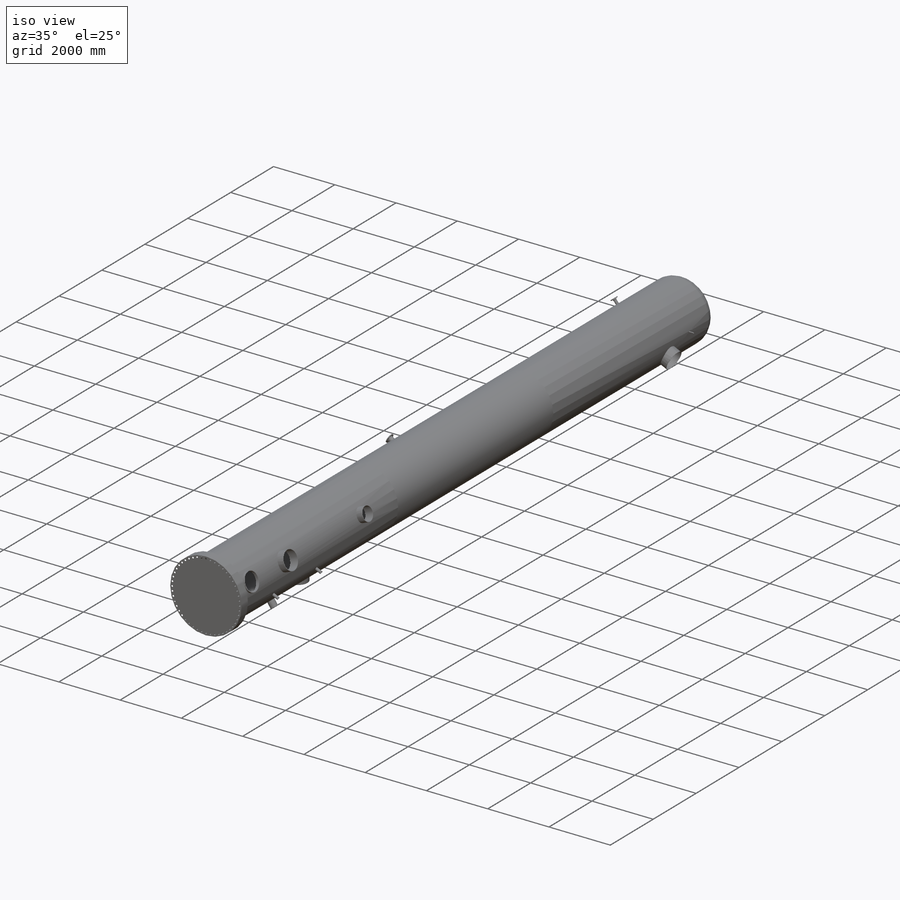
[diagram: iso view]
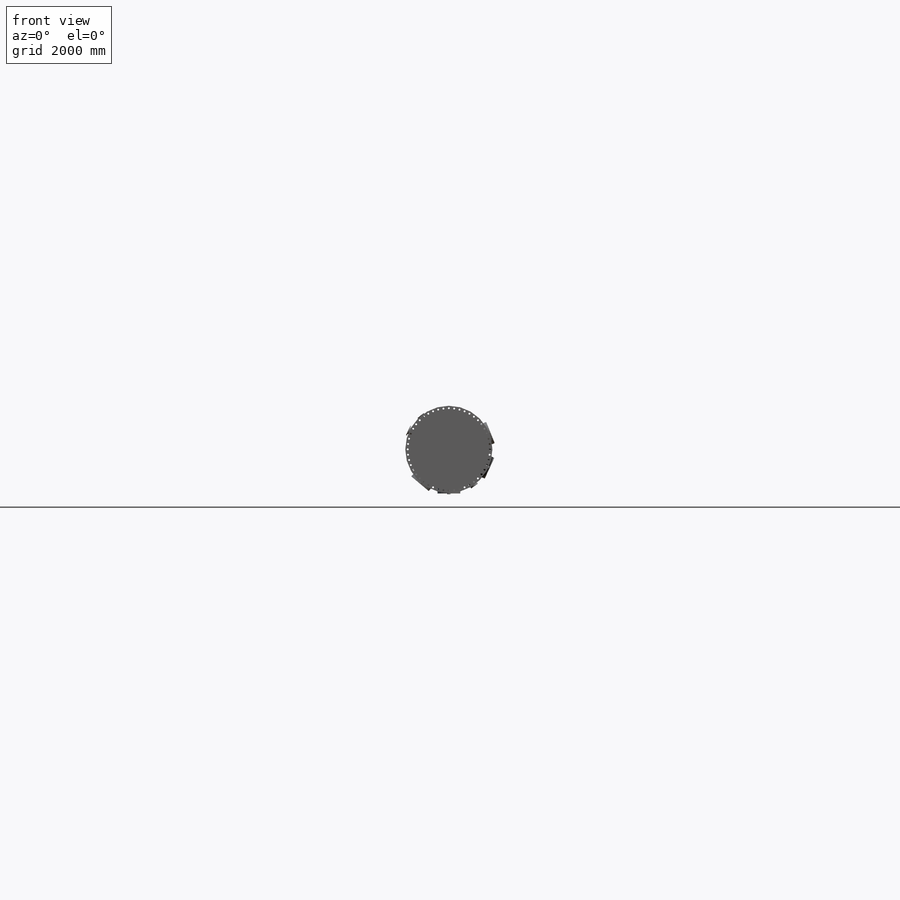
[diagram: front view]
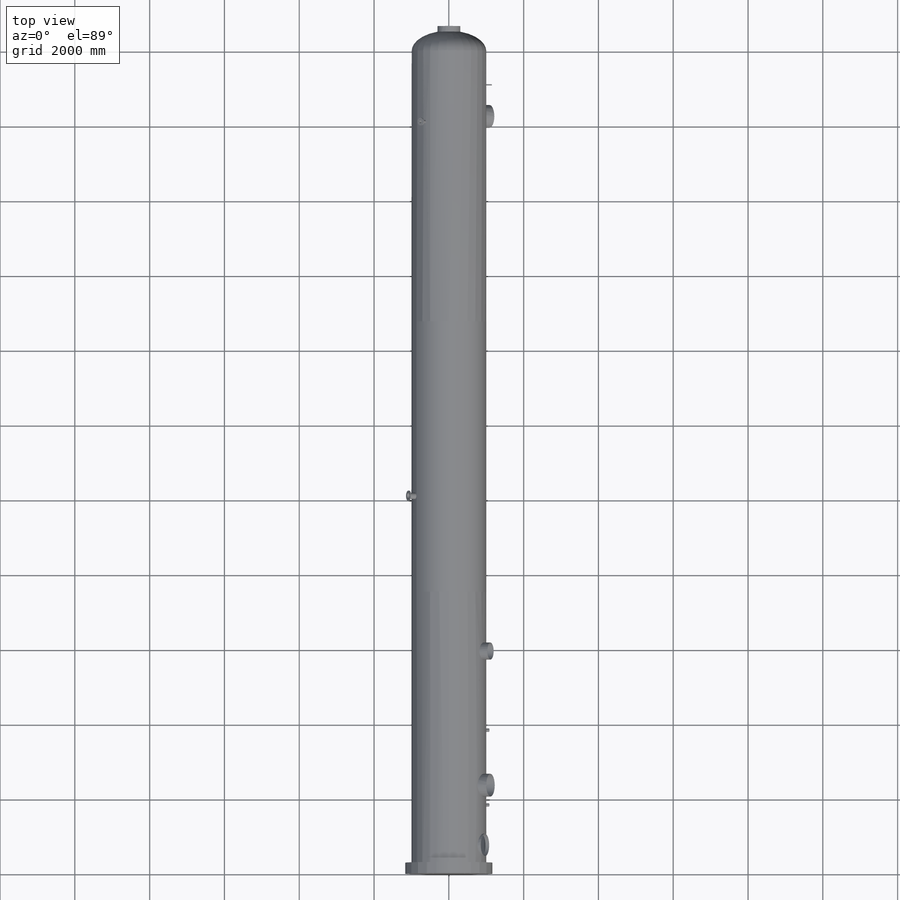
[diagram: top view]
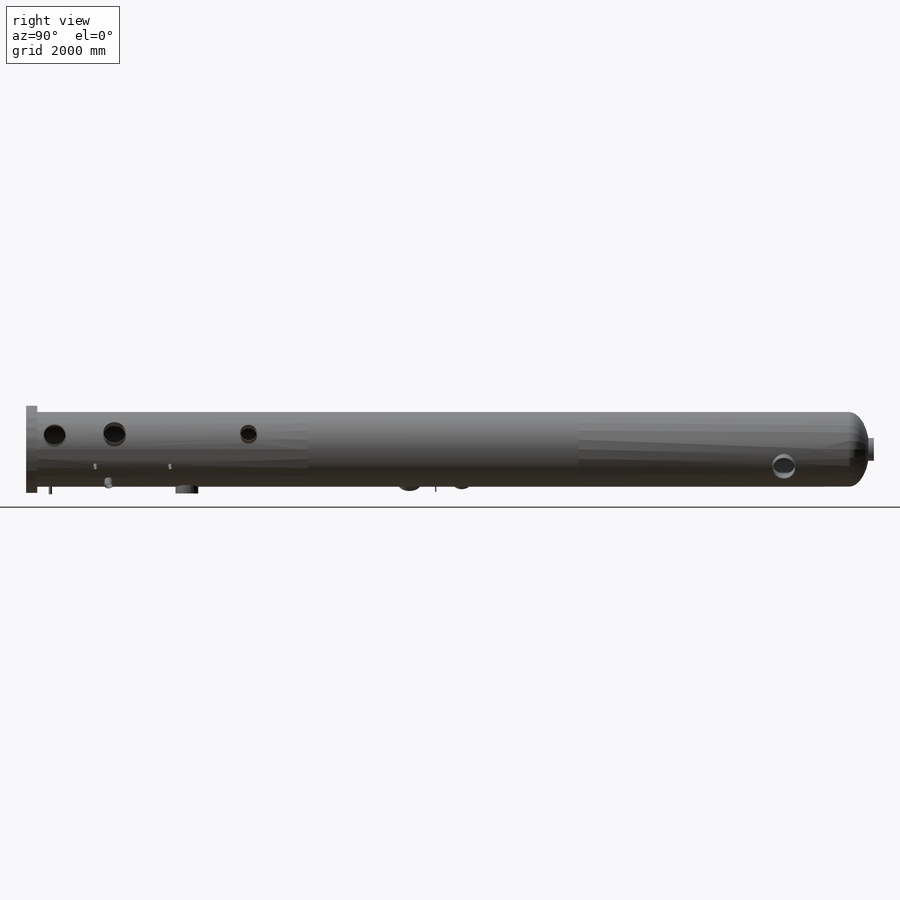
[diagram: right view]
SOLIDWORKS PART (.sldprt)
format: sldprt  version: not decoded by parser v0  size: 1,075,200 bytes
history: native  units: mm
features: sketch x30, revolve x19, plane x9, cut_extrude x9, shell x3, extrude x2, move_body x2, material x1, dome x1, pattern_circular x1 + 2 further entries (+25 scaffold rows collapsed; 10 parser-record rows omitted)
feature tree (114):
  scaffold x25  (default folders/planes/origin — collapsed)
  material  "Material <not specified>"
  plane  "TOP PLANE"
  sketch  "Sketch1"  dims[D1=2000.0mm]
  extrude  "Extrude1"  Depth=22000mm
  dome  "Dome1"
  shell  "Shell1"  Thickness=14mm
  sketch  "Sketch3"  dims[c1.D1=150.0mm c1.D2=20.0mm c1.D3=6.4mm c2.D2=610.0mm c2.D4=20.0mm]
  revolve  "N1"  Angle=360deg
  sketch  "Sketch4"  dims[D1=3.25mm D2=33.401mm D3=21100.0mm D4=150.0mm]
  sketch  "Sketch5"
  cut_extrude  "Extrude2"  Depth=170mm
  revolve  "N2"  Angle=360deg
  plane  "50"
  sketch  "Sketch7"  dims[D1=180.0mm D2=200.0mm D3=5.49mm D4=88.9mm D5=20100.0mm]
  revolve  "N3"  Angle=360deg
  plane  "170"
  sketch  "Sketch8"  dims[D1=10950.0mm D2=3.38mm D3=160.0mm D4=33.53mm D5=150.0mm]
  revolve  "N4"  Angle=360deg
  plane  "65"
  sketch  "Sketch9"  dims[D1=10100.0mm D2=210.0mm D3=7.11mm D4=200.0mm D5=168.15mm]
  revolve  "N5"  Angle=360deg
  "welding neck flange"
  parser-record x10  (decoder bookkeeping rows leaked as tree rows — omitted from the tree; the rows remain in map.json)
  move_body  "Body-Move/Copy2"
  shell  "<welding neck flange>-<Bolt Holes pattern>"  [1 undecoded]
  "welding neck flange8"
  move_body  "Body-Move/Copy18"
  shell  "<welding neck flange>-<Bolt Holes pattern>"  [1 undecoded]
  sketch  "Sketch10"  dims[D1=650.0mm D2=88.9mm D3=5.49mm D4=210.0mm D5=200.0mm]
  revolve  "|N6"  Angle=360deg
  sketch  "Sketch11"  dims[D1=4300.0mm D2=6.4mm D3=610.0mm D4=250.0mm D5=180.0mm]
  revolve  "N8"  Angle=360deg
  sketch  "Sketch12"
  cut_extrude  "Extrude3"  Depth=270mm
  plane  "120"
  sketch  "Sketch13"  dims[D1=9250.0mm D2=21.336mm D3=1.651mm D4=130.0mm D5=125.0mm]
  revolve  "N9"  Angle=360deg
  plane  "140"
  sketch  "Sketch14"  dims[D1=1850.0mm D2=5.49mm D3=88.9mm D4=200.0mm D5=180.0mm]
  revolve  "N11"  Angle=360deg
  sketch  "Sketch15"  dims[D1=5.49mm D2=88.9mm D3=3850.0mm D4=200.0mm D5=180.0mm]
  revolve  "N10"  Angle=360deg
  plane  "245"
  sketch  "Sketch16"  dims[D1=1850.0mm D2=5.49mm D3=200.0mm D4=88.9mm D5=180.0mm]
  revolve  "N13"  Angle=360deg
  sketch  "Sketch17"  dims[D1=200.0mm D2=5.49mm D3=180.0mm D4=88.9mm D5=3850.0mm]
  revolve  "N12"  Angle=360deg
  plane  "215"
  sketch  "Sketch18"  dims[D1=6.35mm D2=200.0mm D3=218.95mm D4=230.0mm]
  revolve  "N7"  Angle=360deg
  plane  "292"
  sketch  "Sketch19"  dims[D1=12.0mm D2=610.0mm D3=40.0mm D4=100.0mm D5=750.0mm]
  revolve  "M1"  Angle=360deg
  sketch  "Sketch20"
  cut_extrude  "Extrude4"  Depth=100mm
  sketch  "Sketch21"  dims[D1=2350.0mm D2=6.35mm D3=609.6mm D4=200.0mm D5=270.0mm]
  revolve  "M2"  Angle=360deg
  sketch  "Sketch22"
  cut_extrude  "Extrude5"  Depth=270mm
  sketch  "Sketch23"  dims[D1=5950.0mm D2=6.35mm D3=457.2mm D4=270.0mm D5=200.0mm]
  revolve  "M3"  Angle=360deg
  sketch  "Sketch24"
  cut_extrude  "Extrude6"  Depth=270mm
  sketch  "Sketch27"  dims[D1=6.35mm D2=270.0mm D3=609.6mm D4=10250.0mm D5=200.0mm]
  revolve  "M4"  Angle=360deg
  sketch  "Sketch28"
  cut_extrude  "Extrude8"  Depth=270mm
  sketch  "Sketch29"  dims[D1=11650.0mm D2=6.3mm D3=457.2mm D4=270.0mm D5=200.0mm]
  revolve  "M5"  Angle=360deg
  sketch  "Sketch30"
  cut_extrude  "Extrude9"  Depth=270mm
  sketch  "Sketch31"  dims[D1=20250.0mm D2=6.3mm D3=270.0mm D4=200.0mm D5=609.6mm]
  revolve  "M6"  Angle=360deg
  sketch  "Sketch32"
  cut_extrude  "Extrude10"  Depth=270mm
  sketch  "Sketch34"  dims[D1=0.0mm D2=165.0mm]
  extrude  "Extrude11"  Depth=300mm
  sketch  "Sketch35"  dims[c1.D1=50.0mm c1.D2=1100.0mm c1.D3=~1085.303946mm c2.D3=7.5deg]
  cut_extrude  "Extrude12"  [1 undecoded]
  pattern_circular  "CirPattern1"  Count=48 Angle=360deg
decode coverage: 53 of 67 modeling features carry decoded parameters; 2 rows unclassified (native names shown)
note: ~ marks probable driven/reference dimensions
note: 3 parameter values undecoded
summary: no parameter record found for 3 features
note: suppression state not decoded; provenance and decode notes live in map.json
